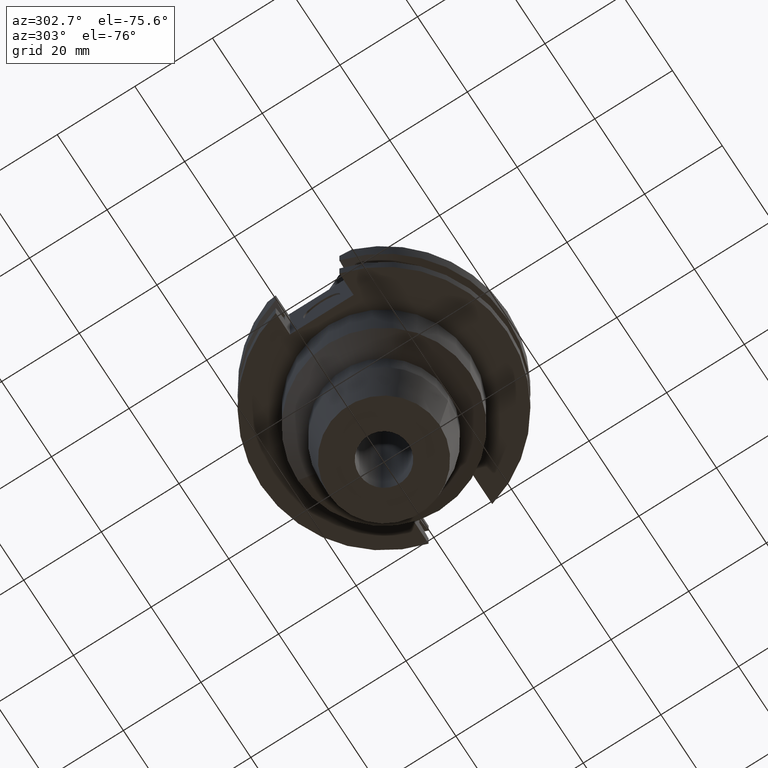
[diagram: clean part render]
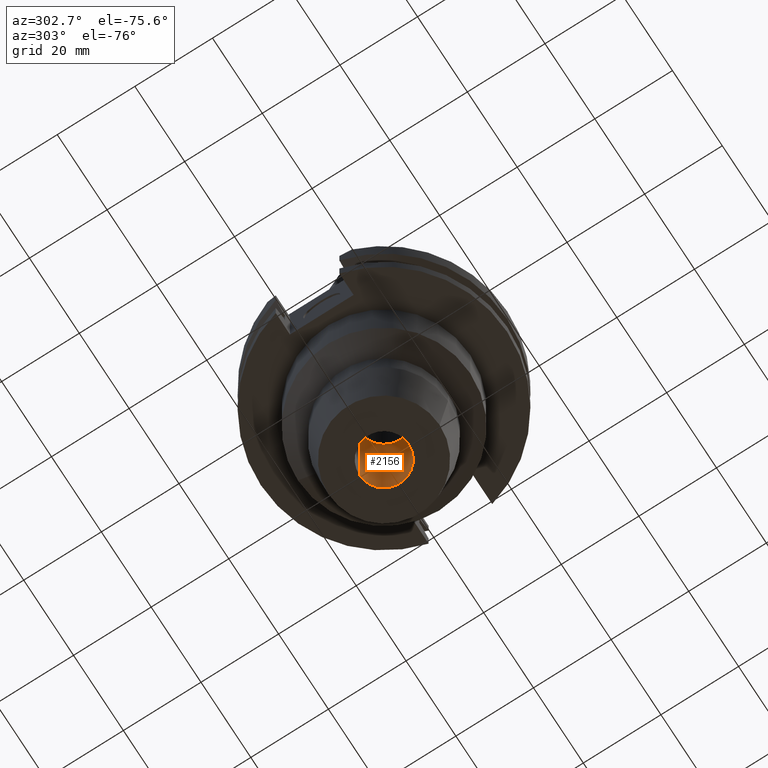
[diagram: same view with one face highlighted and labeled with its STEP entity id]
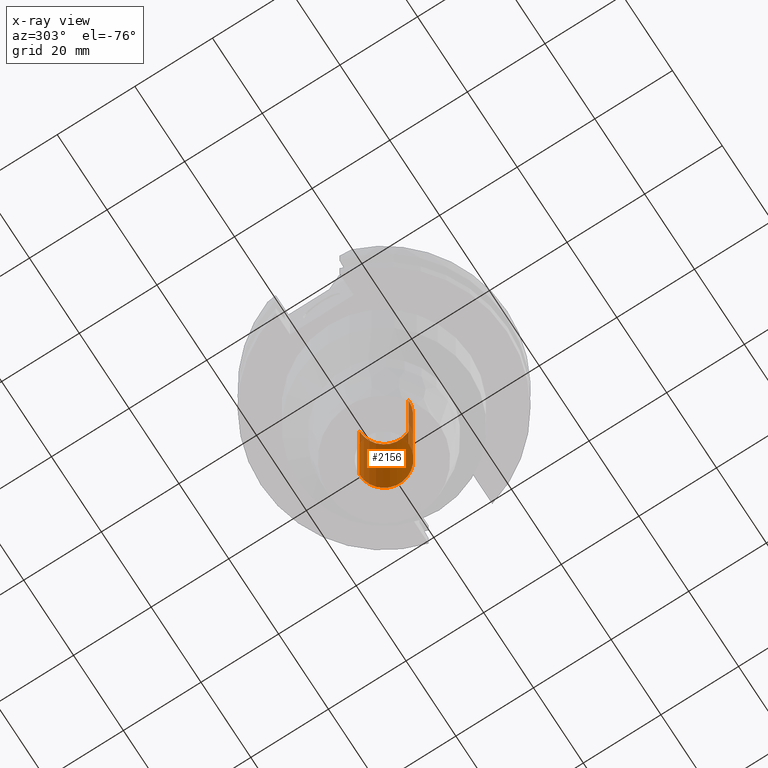
[diagram: x-ray of the same camera — body ghosted, the highlighted face saturated]
A machine part, auxiliary view. The second image highlights one B-rep face of the part: STEP entity #2156.
The next image is the same camera in x-ray: the body ghosted, the highlighted face saturated — about 7% of this face is hidden behind the body in this view.
In plain terms, the highlighted cylindrical surface (edge-blend (fillet) strip) has radius 6.35 mm, axis along (0, 0, 1).
Its self-contained STEP definition (entity closure, byte-faithful):
#944=CARTESIAN_POINT('',(0.E0,0.E0,-6.35E1));
#945=DIRECTION('',(0.E0,0.E0,-1.E0));
#946=DIRECTION('',(0.E0,1.E0,0.E0));
#947=AXIS2_PLACEMENT_3D('',#944,#945,#946);
#952=DIRECTION('',(0.E0,0.E0,1.E0));
#953=VECTOR('',#952,3.8E1);
#954=CARTESIAN_POINT('',(0.E0,-6.35E0,-6.35E1));
#955=LINE('',#954,#953);
#959=DIRECTION('',(0.E0,0.E0,1.E0));
#960=VECTOR('',#959,3.8E1);
#961=CARTESIAN_POINT('',(0.E0,6.35E0,-6.35E1));
#962=LINE('',#961,#960);
#982=CARTESIAN_POINT('',(0.E0,0.E0,-2.55E1));
#983=DIRECTION('',(0.E0,0.E0,1.E0));
#984=DIRECTION('',(0.E0,-1.E0,0.E0));
#985=AXIS2_PLACEMENT_3D('',#982,#983,#984);
#1288=CARTESIAN_POINT('',(0.E0,-6.35E0,-6.35E1));
#1289=CARTESIAN_POINT('',(0.E0,6.35E0,-6.35E1));
#1290=VERTEX_POINT('',#1288);
#1291=VERTEX_POINT('',#1289);
#1292=CARTESIAN_POINT('',(0.E0,6.35E0,-2.55E1));
#1293=VERTEX_POINT('',#1292);
#1294=CARTESIAN_POINT('',(0.E0,-6.35E0,-2.55E1));
#1295=VERTEX_POINT('',#1294);
#2144=CARTESIAN_POINT('',(0.E0,0.E0,-7.00875E1));
#2145=DIRECTION('',(0.E0,0.E0,1.E0));
#2146=DIRECTION('',(0.E0,1.E0,0.E0));
#2147=AXIS2_PLACEMENT_3D('',#2144,#2145,#2146);
#2148=CYLINDRICAL_SURFACE('',#2147,6.35E0);
#2149=ORIENTED_EDGE('',*,*,#2134,.T.);
#2151=ORIENTED_EDGE('',*,*,#2150,.F.);
#2152=ORIENTED_EDGE('',*,*,#2137,.F.);
#2153=ORIENTED_EDGE('',*,*,#2124,.F.);
#2154=EDGE_LOOP('',(#2149,#2151,#2152,#2153));
#2155=FACE_OUTER_BOUND('',#2154,.F.);
#948=CIRCLE('',#947,6.35E0);
#986=CIRCLE('',#985,6.35E0);
#2124=EDGE_CURVE('',#1291,#1290,#948,.T.);
#2134=EDGE_CURVE('',#1291,#1293,#962,.T.);
#2137=EDGE_CURVE('',#1290,#1295,#955,.T.);
#2150=EDGE_CURVE('',#1295,#1293,#986,.T.);
#2156=ADVANCED_FACE('',(#2155),#2148,.F.);